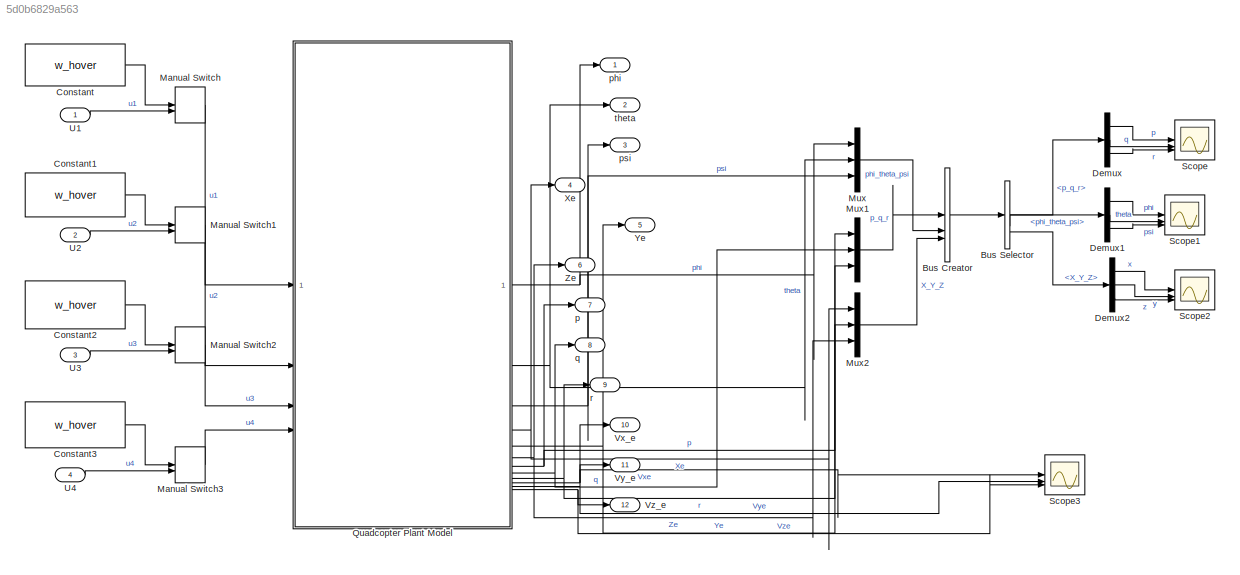
MODEL slx_5d0b6829a563
KIND model
CONFIG AbsTol = auto
CONFIG EnableMultiTasking = off
CONFIG FixedStep = auto
CONFIG MaxStep = auto
CONFIG MinStep = auto
CONFIG RelTol = 1e-3
CONFIG SampleTimeConstraint = Unconstrained
CONFIG SolverName = VariableStepAuto
CONFIG StartTime = 0.0
CONFIG StopTime = 50
BLOCK [BusCreator] Bus Creator
  DisplayOption = bar
  InheritFromInputs = on
  Inputs = 3
BLOCK [BusSelector] Bus Selector
  OutputSignals = p_q_r,phi_theta_psi,X_Y_Z
BLOCK [Constant] Constant
  Value = w_hover
BLOCK [Constant] Constant1
  Value = w_hover
BLOCK [Constant] Constant2
  Value = w_hover
BLOCK [Constant] Constant3
  Value = w_hover
BLOCK [Demux] Demux
  Outputs = 3
BLOCK [Demux] Demux1
  Outputs = 3
BLOCK [Demux] Demux2
  Outputs = 3
BLOCK [ManualSwitch] Manual Switch
BLOCK [ManualSwitch] Manual Switch1
BLOCK [ManualSwitch] Manual Switch2
BLOCK [ManualSwitch] Manual Switch3
BLOCK [Mux] Mux
  DisplayOption = bar
  Inputs = 3
BLOCK [Mux] Mux1
  DisplayOption = bar
  Inputs = 3
BLOCK [Mux] Mux2
  DisplayOption = bar
  Inputs = 3
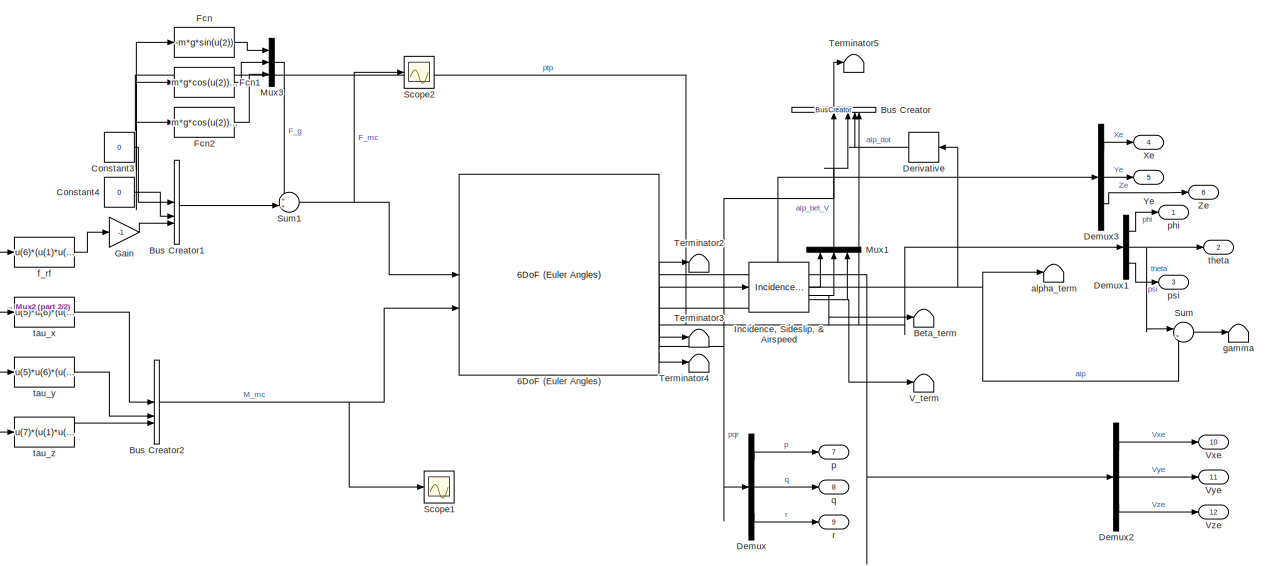
[diagram: Quadcopter Plant Model - part 1/2, most of the canvas]
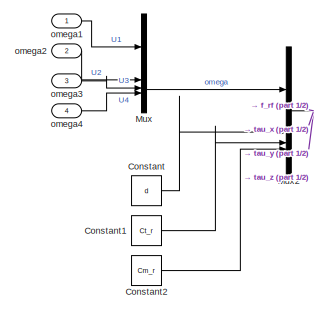
[diagram: Quadcopter Plant Model - part 2/2, middle left region]
BLOCK [SubSystem] Quadcopter Plant Model
BLOCK [Reference] Quadcopter Plant Model/6DoF (Euler Angles)  REF=aerolibobsolete/6DoF (Euler Angles)
  SourceBlock = aerolibobsolete/6DoF (Euler Angles)
  SourceType = 6DoF EoM (Body Axis)
BLOCK [Terminator] Quadcopter Plant Model/Beta_term
BLOCK [BusCreator] Quadcopter Plant Model/Bus Creator
  DisplayOption = bar
  InheritFromInputs = on
  Inputs = 4
  NameLocation = right
BLOCK [BusCreator] Quadcopter Plant Model/Bus Creator1
  DisplayOption = bar
  InheritFromInputs = on
  Inputs = 3
BLOCK [BusCreator] Quadcopter Plant Model/Bus Creator2
  DisplayOption = bar
  InheritFromInputs = on
  Inputs = 3
BLOCK [Constant] Quadcopter Plant Model/Constant
  Value = d
BLOCK [Constant] Quadcopter Plant Model/Constant1
  Value = Ct_r
BLOCK [Constant] Quadcopter Plant Model/Constant2
  Value = Cm_r
BLOCK [Constant] Quadcopter Plant Model/Constant3
  Value = 0
BLOCK [Constant] Quadcopter Plant Model/Constant4
  Value = 0
BLOCK [Demux] Quadcopter Plant Model/Demux
  Outputs = 3
BLOCK [Demux] Quadcopter Plant Model/Demux1
  Outputs = 3
BLOCK [Demux] Quadcopter Plant Model/Demux2
  Outputs = 3
BLOCK [Demux] Quadcopter Plant Model/Demux3
  Outputs = 3
BLOCK [Derivative] Quadcopter Plant Model/Derivative
  NameLocation = top
BLOCK [Fcn] Quadcopter Plant Model/Fcn
  Expr = -m*g*sin(u(2))
BLOCK [Fcn] Quadcopter Plant Model/Fcn1
  Expr = m*g*cos(u(2))*sin(u(1))
BLOCK [Fcn] Quadcopter Plant Model/Fcn2
  Expr = m*g*cos(u(2))*cos(u(1))
BLOCK [Gain] Quadcopter Plant Model/Gain
  Gain = -1
BLOCK [Reference] Quadcopter Plant Model/Incidence, Sideslip, & Airspeed  REF=aerolibasang/Incidence, Sideslip,
& Airspeed
  SourceBlock = aerolibasang/Incidence, Sideslip,\n& Airspeed
  SourceType = Incidence,Sideslip,&Airspeed
BLOCK [Mux] Quadcopter Plant Model/Mux
  DisplayOption = bar
BLOCK [Mux] Quadcopter Plant Model/Mux1
  DisplayOption = bar
  Inputs = 3
  NameLocation = right
BLOCK [Mux] Quadcopter Plant Model/Mux2
  DisplayOption = bar
BLOCK [Mux] Quadcopter Plant Model/Mux3
  DisplayOption = bar
  Inputs = 3
BLOCK [Scope] Quadcopter Plant Model/Scope1
  Floating = off
  NumInputPorts = 1
  ScopeSpecificationString = Simulink.scopes.TimeScopeBlockCfg('CurrentConfiguration', extmgr.ConfigurationSet(extmgr.Configuration('Core','General UI',true),extmgr.Configuration('Core','Source UI',true),extmgr.Configuration('Sources','WiredSimulink',true,'DataLoggingVariableName','ScopeData3'),extmgr.Configuration('Visuals','Time Domain',true,'SerializedDisplays',{struct('MinYLimReal','-0.00057','MaxYLimReal','0.00006','YLab...<+1608ch>
BLOCK [Scope] Quadcopter Plant Model/Scope2
  Floating = off
  NumInputPorts = 1
  ScopeSpecificationString = Simulink.scopes.TimeScopeBlockCfg('CurrentConfiguration', extmgr.ConfigurationSet(extmgr.Configuration('Core','General UI',true),extmgr.Configuration('Core','Source UI',true),extmgr.Configuration('Sources','WiredSimulink',true,'DataLoggingVariableName','ScopeData4'),extmgr.Configuration('Visuals','Time Domain',true,'SerializedDisplays',{struct('MinYLimReal','-0.0000000041','MaxYLimReal','0.0000000...<+1611ch>
BLOCK [Sum] Quadcopter Plant Model/Sum
  Inputs = |+-
BLOCK [Sum] Quadcopter Plant Model/Sum1
  Inputs = ++|
BLOCK [Terminator] Quadcopter Plant Model/Terminator2
BLOCK [Terminator] Quadcopter Plant Model/Terminator3
BLOCK [Terminator] Quadcopter Plant Model/Terminator4
BLOCK [Terminator] Quadcopter Plant Model/Terminator5
BLOCK [Terminator] Quadcopter Plant Model/V_term
BLOCK [Outport] Quadcopter Plant Model/Vxe
  Port = 10
BLOCK [Outport] Quadcopter Plant Model/Vye
  Port = 11
BLOCK [Outport] Quadcopter Plant Model/Vze
  Port = 12
BLOCK [Outport] Quadcopter Plant Model/Xe
  Port = 4
BLOCK [Outport] Quadcopter Plant Model/Ye
  Port = 5
BLOCK [Outport] Quadcopter Plant Model/Ze
  Port = 6
BLOCK [Terminator] Quadcopter Plant Model/alpha_term
BLOCK [Fcn] Quadcopter Plant Model/f_rf
  Expr = u(6)*(u(1)*u(1) + u(2)*u(2) + u(3)*u(3) + u(4)*u(4))
BLOCK [Terminator] Quadcopter Plant Model/gamma
BLOCK [Inport] Quadcopter Plant Model/omega1
BLOCK [Inport] Quadcopter Plant Model/omega2
  Port = 2
BLOCK [Inport] Quadcopter Plant Model/omega3
  Port = 3
BLOCK [Inport] Quadcopter Plant Model/omega4
  Port = 4
BLOCK [Outport] Quadcopter Plant Model/p
  Port = 7
BLOCK [Outport] Quadcopter Plant Model/phi
BLOCK [Outport] Quadcopter Plant Model/psi
  Port = 3
BLOCK [Outport] Quadcopter Plant Model/q
  Port = 8
BLOCK [Outport] Quadcopter Plant Model/r
  Port = 9
BLOCK [Fcn] Quadcopter Plant Model/tau_x
  Expr = u(5)*u(6)*(u(1)*u(1) - u(2)*u(2) - u(3)*u(3) + u(4)*u(4))
BLOCK [Fcn] Quadcopter Plant Model/tau_y
  Expr = u(5)*u(6)*(u(1)*u(1) + u(2)*u(2) - u(3)*u(3) - u(4)*u(4))
BLOCK [Fcn] Quadcopter Plant Model/tau_z
  Expr = u(7)*(u(1)*u(1) - u(2)*u(2) + u(3)*u(3) - u(4)*u(4))
BLOCK [Outport] Quadcopter Plant Model/theta
  Port = 2
BLOCK [Scope] Scope
  Floating = off
  NumInputPorts = 3
  ScopeSpecificationString = Simulink.scopes.TimeScopeBlockCfg('CurrentConfiguration', extmgr.ConfigurationSet(extmgr.Configuration('Core','General UI',true),extmgr.Configuration('Core','Source UI',true),extmgr.Configuration('Sources','WiredSimulink',true),extmgr.Configuration('Visuals','Time Domain',true,'SerializedDisplays',{struct('MinYLimReal','-0.35378','MaxYLimReal','0.20902','YLabelReal','','MinYLimMag','0.00000','MaxY...<+1534ch>
BLOCK [Scope] Scope1
  Floating = off
  NumInputPorts = 3
  ScopeSpecificationString = Simulink.scopes.TimeScopeBlockCfg('CurrentConfiguration', extmgr.ConfigurationSet(extmgr.Configuration('Core','General UI',true),extmgr.Configuration('Core','Source UI',true),extmgr.Configuration('Sources','WiredSimulink',true,'DataLoggingVariableName','ScopeData1'),extmgr.Configuration('Visuals','Time Domain',true,'SerializedDisplays',{struct('MinYLimReal','-1.37833','MaxYLimReal','0.40774','YLab...<+1587ch>
BLOCK [Scope] Scope2
  Floating = off
  NumInputPorts = 3
  ScopeSpecificationString = Simulink.scopes.TimeScopeBlockCfg('CurrentConfiguration', extmgr.ConfigurationSet(extmgr.Configuration('Core','General UI',true),extmgr.Configuration('Core','Source UI',true),extmgr.Configuration('Sources','WiredSimulink',true,'DataLoggingVariableName','ScopeData2'),extmgr.Configuration('Visuals','Time Domain',true,'SerializedDisplays',{struct('MinYLimReal','-482.53095','MaxYLimReal','1131.39051',...<+1593ch>
BLOCK [Scope] Scope3
  Floating = off
  NumInputPorts = 3
  ScopeSpecificationString = Simulink.scopes.TimeScopeBlockCfg('CurrentConfiguration', extmgr.ConfigurationSet(extmgr.Configuration('Core','General UI',true),extmgr.Configuration('Core','Source UI',true),extmgr.Configuration('Sources','WiredSimulink',true,'DataLoggingVariableName','ScopeData1'),extmgr.Configuration('Visuals','Time Domain',true,'SerializedDisplays',{struct('MinYLimReal','-0.000000012','MaxYLimReal','0.00000000...<+1636ch>
BLOCK [Inport] U1
BLOCK [Inport] U2
  Port = 2
BLOCK [Inport] U3
  Port = 3
BLOCK [Inport] U4
  Port = 4
BLOCK [Outport] Vx_e
  Port = 10
BLOCK [Outport] Vy_e
  Port = 11
BLOCK [Outport] Vz_e
  Port = 12
BLOCK [Outport] Xe
  Port = 4
BLOCK [Outport] Ye
  Port = 5
BLOCK [Outport] Ze
  Port = 6
BLOCK [Outport] p
  Port = 7
BLOCK [Outport] phi
BLOCK [Outport] psi
  Port = 3
BLOCK [Outport] q
  Port = 8
BLOCK [Outport] r
  Port = 9
BLOCK [Outport] theta
  Port = 2
LINE Bus Creator:1 -> Bus Selector:1
LINE Bus Selector:1 -> Demux:1
LINE Bus Selector:2 -> Demux1:1
LINE Bus Selector:3 -> Demux2:1
LINE Constant1:1 -> Manual Switch1:1
LINE Constant2:1 -> Manual Switch2:1
LINE Constant3:1 -> Manual Switch3:1
LINE Constant:1 -> Manual Switch:1
LINE Demux1:1 -> Scope1:1
LINE Demux1:2 -> Scope1:2
LINE Demux1:3 -> Scope1:3
LINE Demux2:1 -> Scope2:1
LINE Demux2:2 -> Scope2:2
LINE Demux2:3 -> Scope2:3
LINE Demux:1 -> Scope:1
LINE Demux:2 -> Scope:2
LINE Demux:3 -> Scope:3
LINE Manual Switch1:1 -> Quadcopter Plant Model:2
LINE Manual Switch2:1 -> Quadcopter Plant Model:3
LINE Manual Switch3:1 -> Quadcopter Plant Model:4
LINE Manual Switch:1 -> Quadcopter Plant Model:1
LINE Mux1:1 -> Bus Creator:1
LINE Mux2:1 -> Bus Creator:3
LINE Mux:1 -> Bus Creator:2
LINE Quadcopter Plant Model/6DoF (Euler Angles):1 -> Quadcopter Plant Model/Demux2:1
LINE Quadcopter Plant Model/6DoF (Euler Angles):2 -> Quadcopter Plant Model/Demux3:1
NET Quadcopter Plant Model/6DoF (Euler Angles):3 -> Quadcopter Plant Model/Bus Creator:4, Quadcopter Plant Model/Demux1:1, Quadcopter Plant Model/Fcn1:1, Quadcopter Plant Model/Fcn2:1, Quadcopter Plant Model/Fcn:1
LINE Quadcopter Plant Model/6DoF (Euler Angles):4 -> Quadcopter Plant Model/Terminator2:1
LINE Quadcopter Plant Model/6DoF (Euler Angles):5 -> Quadcopter Plant Model/Incidence, Sideslip, & Airspeed:1
NET Quadcopter Plant Model/6DoF (Euler Angles):6 -> Quadcopter Plant Model/Bus Creator:1, Quadcopter Plant Model/Demux:1
LINE Quadcopter Plant Model/6DoF (Euler Angles):7 -> Quadcopter Plant Model/Terminator3:1
LINE Quadcopter Plant Model/6DoF (Euler Angles):8 -> Quadcopter Plant Model/Terminator4:1
LINE Quadcopter Plant Model/Bus Creator1:1 -> Quadcopter Plant Model/Sum1:2
NET Quadcopter Plant Model/Bus Creator2:1 -> Quadcopter Plant Model/6DoF (Euler Angles):2, Quadcopter Plant Model/Scope1:1
LINE Quadcopter Plant Model/Bus Creator:1 -> Quadcopter Plant Model/Terminator5:1
LINE Quadcopter Plant Model/Constant1:1 -> Quadcopter Plant Model/Mux2:3
LINE Quadcopter Plant Model/Constant2:1 -> Quadcopter Plant Model/Mux2:4
LINE Quadcopter Plant Model/Constant3:1 -> Quadcopter Plant Model/Bus Creator1:1
LINE Quadcopter Plant Model/Constant4:1 -> Quadcopter Plant Model/Bus Creator1:2
LINE Quadcopter Plant Model/Constant:1 -> Quadcopter Plant Model/Mux2:2
LINE Quadcopter Plant Model/Demux1:1 -> Quadcopter Plant Model/phi:1
NET Quadcopter Plant Model/Demux1:2 -> Quadcopter Plant Model/Sum:1, Quadcopter Plant Model/theta:1
LINE Quadcopter Plant Model/Demux1:3 -> Quadcopter Plant Model/psi:1
LINE Quadcopter Plant Model/Demux2:1 -> Quadcopter Plant Model/Vxe:1
LINE Quadcopter Plant Model/Demux2:2 -> Quadcopter Plant Model/Vye:1
LINE Quadcopter Plant Model/Demux2:3 -> Quadcopter Plant Model/Vze:1
LINE Quadcopter Plant Model/Demux3:1 -> Quadcopter Plant Model/Xe:1
LINE Quadcopter Plant Model/Demux3:2 -> Quadcopter Plant Model/Ye:1
LINE Quadcopter Plant Model/Demux3:3 -> Quadcopter Plant Model/Ze:1
LINE Quadcopter Plant Model/Demux:1 -> Quadcopter Plant Model/p:1
LINE Quadcopter Plant Model/Demux:2 -> Quadcopter Plant Model/q:1
LINE Quadcopter Plant Model/Demux:3 -> Quadcopter Plant Model/r:1
LINE Quadcopter Plant Model/Derivative:1 -> Quadcopter Plant Model/Bus Creator:3
LINE Quadcopter Plant Model/Fcn1:1 -> Quadcopter Plant Model/Mux3:2
LINE Quadcopter Plant Model/Fcn2:1 -> Quadcopter Plant Model/Mux3:3
LINE Quadcopter Plant Model/Fcn:1 -> Quadcopter Plant Model/Mux3:1
LINE Quadcopter Plant Model/Gain:1 -> Quadcopter Plant Model/Bus Creator1:3
NET Quadcopter Plant Model/Incidence, Sideslip, & Airspeed:1 -> Quadcopter Plant Model/Derivative:1, Quadcopter Plant Model/Mux1:1, Quadcopter Plant Model/Sum:2, Quadcopter Plant Model/alpha_term:1
NET Quadcopter Plant Model/Incidence, Sideslip, & Airspeed:2 -> Quadcopter Plant Model/Beta_term:1, Quadcopter Plant Model/Mux1:2
NET Quadcopter Plant Model/Incidence, Sideslip, & Airspeed:3 -> Quadcopter Plant Model/Mux1:3, Quadcopter Plant Model/V_term:1
LINE Quadcopter Plant Model/Mux1:1 -> Quadcopter Plant Model/Bus Creator:2
NET Quadcopter Plant Model/Mux2:1 -> Quadcopter Plant Model/f_rf:1, Quadcopter Plant Model/tau_x:1, Quadcopter Plant Model/tau_y:1, Quadcopter Plant Model/tau_z:1
LINE Quadcopter Plant Model/Mux3:1 -> Quadcopter Plant Model/Sum1:1
LINE Quadcopter Plant Model/Mux:1 -> Quadcopter Plant Model/Mux2:1
NET Quadcopter Plant Model/Sum1:1 -> Quadcopter Plant Model/6DoF (Euler Angles):1, Quadcopter Plant Model/Scope2:1
LINE Quadcopter Plant Model/Sum:1 -> Quadcopter Plant Model/gamma:1
LINE Quadcopter Plant Model/f_rf:1 -> Quadcopter Plant Model/Gain:1
LINE Quadcopter Plant Model/omega1:1 -> Quadcopter Plant Model/Mux:1
LINE Quadcopter Plant Model/omega2:1 -> Quadcopter Plant Model/Mux:2
LINE Quadcopter Plant Model/omega3:1 -> Quadcopter Plant Model/Mux:3
LINE Quadcopter Plant Model/omega4:1 -> Quadcopter Plant Model/Mux:4
LINE Quadcopter Plant Model/tau_x:1 -> Quadcopter Plant Model/Bus Creator2:1
LINE Quadcopter Plant Model/tau_y:1 -> Quadcopter Plant Model/Bus Creator2:2
LINE Quadcopter Plant Model/tau_z:1 -> Quadcopter Plant Model/Bus Creator2:3
NET Quadcopter Plant Model:1 -> Mux:1, phi:1
NET Quadcopter Plant Model:10 -> Scope3:1, Vx_e:1
NET Quadcopter Plant Model:11 -> Scope3:2, Vy_e:1
NET Quadcopter Plant Model:12 -> Scope3:3, Vz_e:1
NET Quadcopter Plant Model:2 -> Mux:2, theta:1
NET Quadcopter Plant Model:3 -> Mux:3, psi:1
NET Quadcopter Plant Model:4 -> Mux2:1, Xe:1
NET Quadcopter Plant Model:5 -> Mux2:2, Ye:1
NET Quadcopter Plant Model:6 -> Mux2:3, Ze:1
NET Quadcopter Plant Model:7 -> Mux1:1, p:1
NET Quadcopter Plant Model:8 -> Mux1:2, q:1
NET Quadcopter Plant Model:9 -> Mux1:3, r:1
LINE U1:1 -> Manual Switch:2
LINE U2:1 -> Manual Switch1:2
LINE U3:1 -> Manual Switch2:2
LINE U4:1 -> Manual Switch3:2
note: NET lines group one-source signal fan-out (src -> all destinations, sorted); 1:1 wires keep LINE
